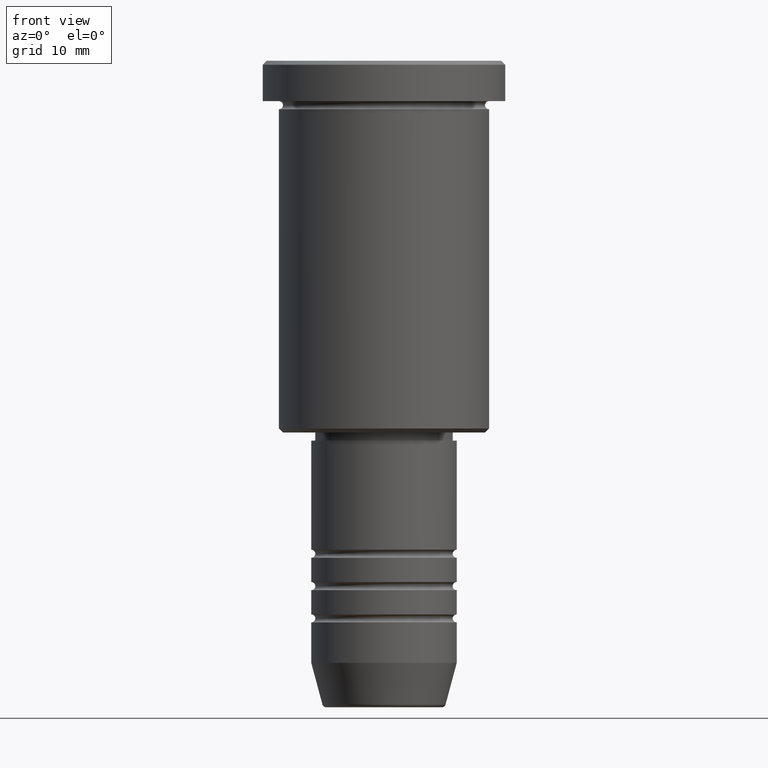
[diagram: clean part render]
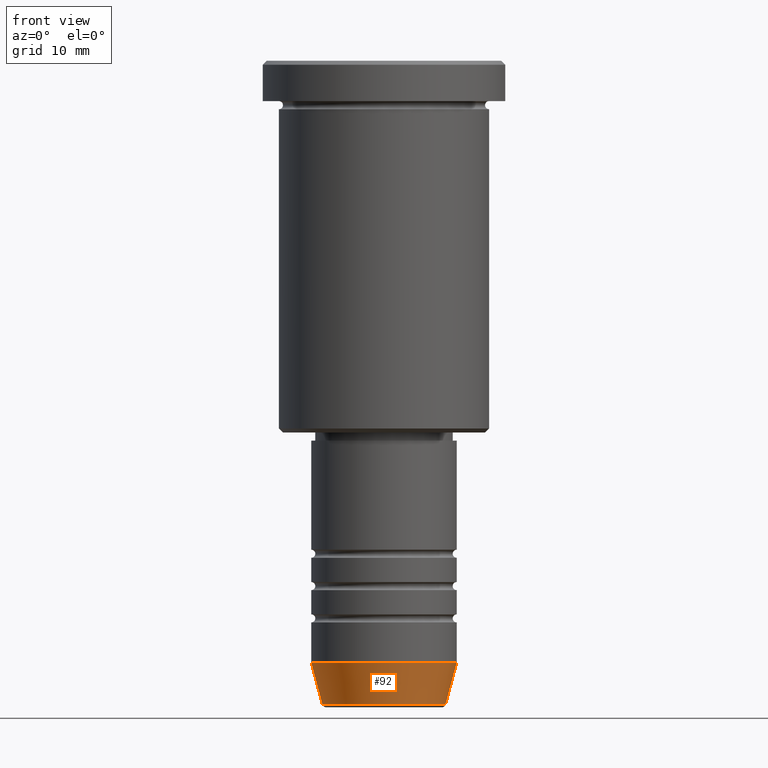
[diagram: same view with one face highlighted and labeled with its STEP entity id]
A machine part, front view. The second image highlights one B-rep face of the part: STEP entity #92.
In plain terms, the highlighted conical surface has half-angle 15 deg.
Its self-contained STEP definition (entity closure, byte-faithful):
#56 = FACE_OUTER_BOUND ( 'NONE', #965, .T. ) ;
#77 = DIRECTION ( 'NONE',  ( -0.2588190451025211836, 3.169619151431770488E-17, 0.9659258262890680902 ) ) ;
#92 = ADVANCED_FACE ( 'NONE', ( #56 ), #458, .T. ) ;
#97 = AXIS2_PLACEMENT_3D ( 'NONE', #1042, #212, #219 ) ;
#111 = CIRCLE ( 'NONE', #674, 9.000000000000001776 ) ;
#182 = DIRECTION ( 'NONE',  ( -0.000000000000000000, -0.000000000000000000, 1.000000000000000000 ) ) ;
#212 = DIRECTION ( 'NONE',  ( -0.000000000000000000, -0.000000000000000000, 1.000000000000000000 ) ) ;
#219 = DIRECTION ( 'NONE',  ( 1.000000000000000000, 0.000000000000000000, 0.000000000000000000 ) ) ;
#258 = VERTEX_POINT ( 'NONE', #802 ) ;
#270 = CARTESIAN_POINT ( 'NONE',  ( 0.000000000000000000, 0.000000000000000000, -74.50000000000001421 ) ) ;
#370 = EDGE_CURVE ( 'NONE', #258, #376, #518, .T. ) ;
#376 = VERTEX_POINT ( 'NONE', #951 ) ;
#389 = VERTEX_POINT ( 'NONE', #840 ) ;
#407 = EDGE_CURVE ( 'NONE', #376, #389, #958, .T. ) ;
#408 = CARTESIAN_POINT ( 'NONE',  ( 0.000000000000000000, 0.000000000000000000, -74.50000000000001421 ) ) ;
#458 = CONICAL_SURFACE ( 'NONE', #988, 9.000000000000001776, 0.2617993877991499074 ) ;
#511 = CARTESIAN_POINT ( 'NONE',  ( 9.000000000000001776, 0.000000000000000000, -74.50000000000001421 ) ) ;
#518 = CIRCLE ( 'NONE', #97, 7.625578860783878810 ) ;
#527 = LINE ( 'NONE', #1070, #832 ) ;
#535 = DIRECTION ( 'NONE',  ( 1.000000000000000000, 0.000000000000000000, 0.000000000000000000 ) ) ;
#608 = ORIENTED_EDGE ( 'NONE', *, *, #881, .F. ) ;
#626 = DIRECTION ( 'NONE',  ( 1.000000000000000000, 0.000000000000000000, 0.000000000000000000 ) ) ;
#666 = VERTEX_POINT ( 'NONE', #744 ) ;
#674 = AXIS2_PLACEMENT_3D ( 'NONE', #270, #931, #626 ) ;
#708 = ORIENTED_EDGE ( 'NONE', *, *, #370, .T. ) ;
#744 = CARTESIAN_POINT ( 'NONE',  ( -9.000000000000001776, 1.102182119232617911E-15, -74.50000000000001421 ) ) ;
#802 = CARTESIAN_POINT ( 'NONE',  ( -7.625578860783878810, 1.018023096791543899E-15, -79.62940952255127058 ) ) ;
#832 = VECTOR ( 'NONE', #77, 1000.000000000000114 ) ;
#840 = CARTESIAN_POINT ( 'NONE',  ( 9.000000000000001776, 0.000000000000000000, -74.50000000000001421 ) ) ;
#881 = EDGE_CURVE ( 'NONE', #258, #666, #527, .T. ) ;
#931 = DIRECTION ( 'NONE',  ( -0.000000000000000000, -0.000000000000000000, 1.000000000000000000 ) ) ;
#951 = CARTESIAN_POINT ( 'NONE',  ( 7.625578860783878810, 0.000000000000000000, -79.62940952255127058 ) ) ;
#958 = LINE ( 'NONE', #511, #1073 ) ;
#965 = EDGE_LOOP ( 'NONE', ( #608, #708, #1019, #1134 ) ) ;
#988 = AXIS2_PLACEMENT_3D ( 'NONE', #408, #182, #535 ) ;
#1019 = ORIENTED_EDGE ( 'NONE', *, *, #407, .T. ) ;
#1042 = CARTESIAN_POINT ( 'NONE',  ( 0.000000000000000000, 0.000000000000000000, -79.62940952255127058 ) ) ;
#1063 = EDGE_CURVE ( 'NONE', #666, #389, #111, .T. ) ;
#1064 = DIRECTION ( 'NONE',  ( 0.2588190451025211836, 0.000000000000000000, 0.9659258262890680902 ) ) ;
#1070 = CARTESIAN_POINT ( 'NONE',  ( -9.000000000000001776, 1.102182119232617911E-15, -74.50000000000001421 ) ) ;
#1073 = VECTOR ( 'NONE', #1064, 1000.000000000000114 ) ;
#1134 = ORIENTED_EDGE ( 'NONE', *, *, #1063, .F. ) ;